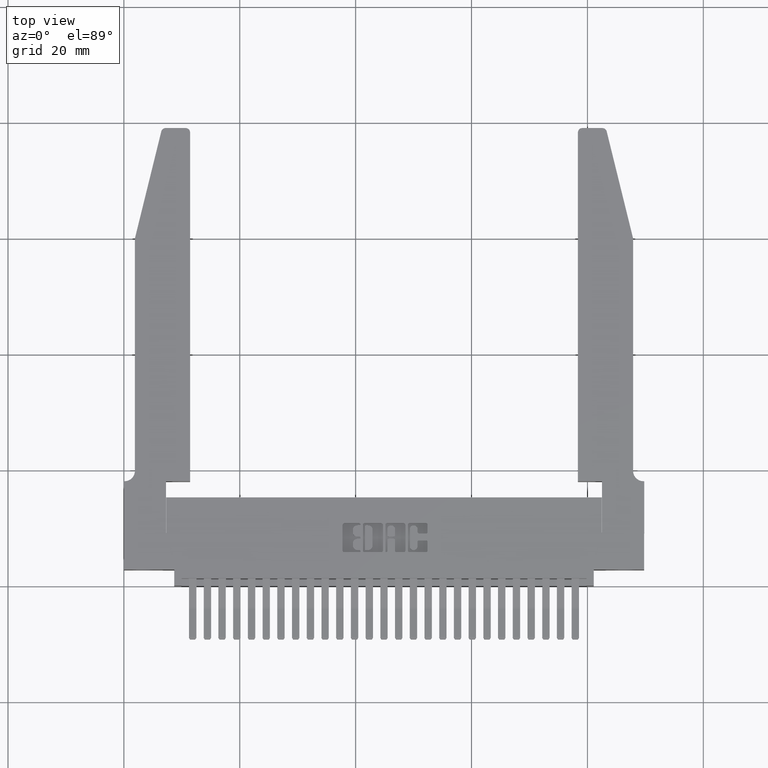
[diagram: clean part render]
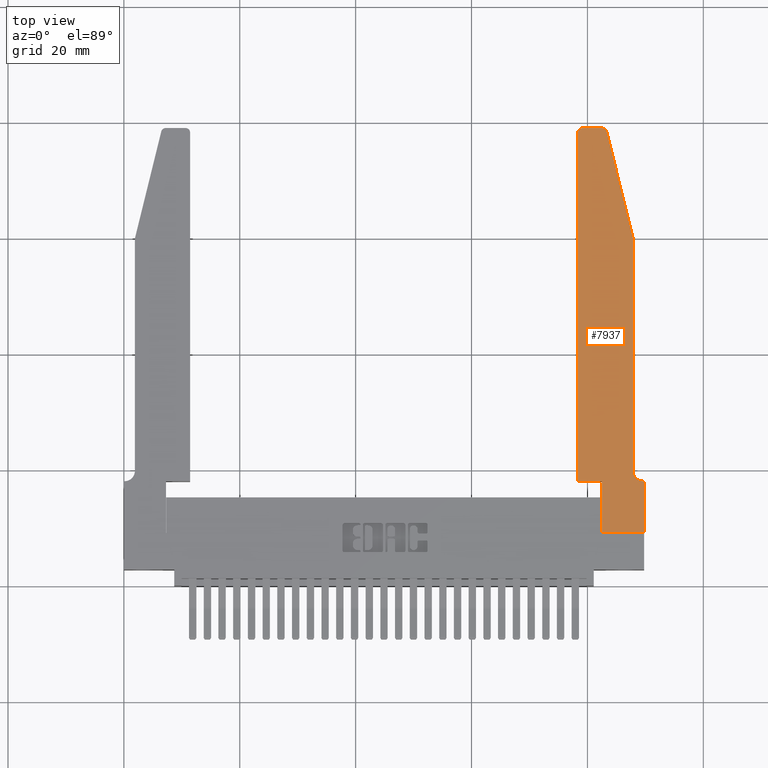
[diagram: same view with one face highlighted and labeled with its STEP entity id]
A machine part, top view. The second image highlights one B-rep face of the part: STEP entity #7937.
In plain terms, the highlighted planar face has unit normal (-0, -0, -1).
Its self-contained STEP definition (entity closure, byte-faithful):
#532 = ORIENTED_EDGE ( 'NONE', *, *, #10809, .F. ) ;
#771 = LINE ( 'NONE', #16269, #17535 ) ;
#1700 = VECTOR ( 'NONE', #20472, 39.37007874015748100 ) ;
#1913 = CARTESIAN_POINT ( 'NONE',  ( 0.07550000000000033100, 0.3499999999999999800, 0.0000000000000000000 ) ) ;
#1915 = ORIENTED_EDGE ( 'NONE', *, *, #7622, .F. ) ;
#1965 = CARTESIAN_POINT ( 'NONE',  ( 0.0000000000000000000, 0.3499999999999999800, 0.0000000000000000000 ) ) ;
#2440 = LINE ( 'NONE', #15037, #24242 ) ;
#3060 = VECTOR ( 'NONE', #13003, 39.37007874015748100 ) ;
#3085 = LINE ( 'NONE', #12514, #14041 ) ;
#3381 = CARTESIAN_POINT ( 'NONE',  ( 0.4505000000000000100, 2.719999999999999300, 0.0000000000000000000 ) ) ;
#3650 = ORIENTED_EDGE ( 'NONE', *, *, #17206, .F. ) ;
#3780 = CARTESIAN_POINT ( 'NONE',  ( 0.005500000000000255600, 0.3499999999999999800, 0.0000000000000000000 ) ) ;
#4353 = VERTEX_POINT ( 'NONE', #11596 ) ;
#4933 = CARTESIAN_POINT ( 'NONE',  ( 0.4505000000000000100, 0.3499999999999999800, 0.0000000000000000000 ) ) ;
#4961 = DIRECTION ( 'NONE',  ( -5.612000012723082900E-032, -1.000000000000000000, -5.916456789157588500E-031 ) ) ;
#4964 = CARTESIAN_POINT ( 'NONE',  ( 0.005500000000000255600, 0.4199999999999999800, 0.0000000000000000000 ) ) ;
#5191 = VERTEX_POINT ( 'NONE', #25527 ) ;
#5216 = CARTESIAN_POINT ( 'NONE',  ( 0.0000000000000000000, 0.0000000000000000000, 0.0000000000000000000 ) ) ;
#5698 = EDGE_CURVE ( 'NONE', #17451, #23952, #771, .T. ) ;
#5926 = DIRECTION ( 'NONE',  ( -1.000000000000000000, -5.612000012723089400E-032, 0.0000000000000000000 ) ) ;
#6003 = VERTEX_POINT ( 'NONE', #26130 ) ;
#6233 = CARTESIAN_POINT ( 'NONE',  ( 0.07550000000000033100, 0.4199999999999999800, 0.0000000000000000000 ) ) ;
#6927 = LINE ( 'NONE', #1913, #12062 ) ;
#7175 = DIRECTION ( 'NONE',  ( 1.000000000000000000, 5.612000012723089400E-032, 0.0000000000000000000 ) ) ;
#7190 = DIRECTION ( 'NONE',  ( -0.0000000000000000000, -5.916456789157588500E-031, -1.000000000000000000 ) ) ;
#7215 = DIRECTION ( 'NONE',  ( -1.000000000000000000, 0.0000000000000000000, 0.0000000000000000000 ) ) ;
#7440 = AXIS2_PLACEMENT_3D ( 'NONE', #20210, #7190, #22366 ) ;
#7622 = EDGE_CURVE ( 'NONE', #24142, #14836, #18804, .T. ) ;
#7653 = CARTESIAN_POINT ( 'NONE',  ( 0.4205000000000000400, 2.750000000000000000, 0.0000000000000000000 ) ) ;
#7807 = EDGE_CURVE ( 'NONE', #21819, #9888, #3085, .T. ) ;
#7837 = ORIENTED_EDGE ( 'NONE', *, *, #20632, .F. ) ;
#7937 = ADVANCED_FACE ( 'NONE', ( #27832 ), #27979, .F. ) ;
#8160 = ORIENTED_EDGE ( 'NONE', *, *, #22643, .F. ) ;
#8516 = DIRECTION ( 'NONE',  ( 1.241749088029210900E-016, -1.000000000000000000, -5.916456789157588500E-031 ) ) ;
#8657 = DIRECTION ( 'NONE',  ( -3.320315557602799600E-062, 5.916456789157588500E-031, 1.000000000000000000 ) ) ;
#8778 = LINE ( 'NONE', #4933, #25343 ) ;
#8847 = CIRCLE ( 'NONE', #7440, 0.03000000000000002300 ) ;
#8945 = LINE ( 'NONE', #21656, #3060 ) ;
#9138 = CIRCLE ( 'NONE', #15645, 0.03000000000000002300 ) ;
#9145 = AXIS2_PLACEMENT_3D ( 'NONE', #1965, #8657, #23773 ) ;
#9677 = AXIS2_PLACEMENT_3D ( 'NONE', #4964, #20241, #7215 ) ;
#9888 = VERTEX_POINT ( 'NONE', #19467 ) ;
#10809 = EDGE_CURVE ( 'NONE', #6003, #21819, #24898, .T. ) ;
#10867 = ORIENTED_EDGE ( 'NONE', *, *, #19160, .F. ) ;
#11098 = CARTESIAN_POINT ( 'NONE',  ( 0.4505000000000000100, 0.3499999999999999800, 0.0000000000000000000 ) ) ;
#11422 = VERTEX_POINT ( 'NONE', #7653 ) ;
#11596 = CARTESIAN_POINT ( 'NONE',  ( 0.0000000000000000000, 0.3499999999999999800, 0.0000000000000000000 ) ) ;
#12062 = VECTOR ( 'NONE', #23727, 39.37007874015748100 ) ;
#12514 = CARTESIAN_POINT ( 'NONE',  ( 0.2864999999999998100, 0.3499999999999999800, 0.0000000000000000000 ) ) ;
#12589 = CARTESIAN_POINT ( 'NONE',  ( 0.4205000000000000400, 2.719999999999999300, 0.0000000000000000000 ) ) ;
#12631 = EDGE_LOOP ( 'NONE', ( #8160, #25407, #3650, #15278, #21040, #10867, #22395, #532, #17998, #23730, #1915, #7837 ) ) ;
#13003 = DIRECTION ( 'NONE',  ( -0.2394884713086027600, -0.9708992080078490100, -5.916456789157588500E-031 ) ) ;
#14041 = VECTOR ( 'NONE', #23404, 39.37007874015748100 ) ;
#14783 = DIRECTION ( 'NONE',  ( 1.000000000000000000, 0.0000000000000000000, 0.0000000000000000000 ) ) ;
#14836 = VERTEX_POINT ( 'NONE', #3780 ) ;
#15037 = CARTESIAN_POINT ( 'NONE',  ( 0.07550000000000033100, 1.999999999999999300, 0.0000000000000000000 ) ) ;
#15278 = ORIENTED_EDGE ( 'NONE', *, *, #18870, .T. ) ;
#15645 = AXIS2_PLACEMENT_3D ( 'NONE', #12589, #27676, #14783 ) ;
#16269 = CARTESIAN_POINT ( 'NONE',  ( 0.4505000000000000100, 0.3499999999999999800, 0.0000000000000000000 ) ) ;
#17206 = EDGE_CURVE ( 'NONE', #11422, #5191, #25565, .T. ) ;
#17257 = LINE ( 'NONE', #26603, #22354 ) ;
#17451 = VERTEX_POINT ( 'NONE', #11098 ) ;
#17535 = VECTOR ( 'NONE', #20716, 39.37007874015748100 ) ;
#17998 = ORIENTED_EDGE ( 'NONE', *, *, #18522, .F. ) ;
#18472 = VERTEX_POINT ( 'NONE', #22196 ) ;
#18522 = EDGE_CURVE ( 'NONE', #4353, #6003, #17257, .T. ) ;
#18804 = CIRCLE ( 'NONE', #9677, 0.07000000000000000700 ) ;
#18870 = EDGE_CURVE ( 'NONE', #11422, #23952, #9138, .T. ) ;
#18974 = CARTESIAN_POINT ( 'NONE',  ( 0.2605000000000001200, 2.750000000000000000, 0.0000000000000000000 ) ) ;
#19159 = VECTOR ( 'NONE', #5926, 39.37007874015748100 ) ;
#19160 = EDGE_CURVE ( 'NONE', #9888, #17451, #8778, .T. ) ;
#19467 = CARTESIAN_POINT ( 'NONE',  ( 0.2864999999999998100, 0.3499999999999999800, 0.0000000000000000000 ) ) ;
#20210 = CARTESIAN_POINT ( 'NONE',  ( 0.2839991909279190300, 2.719999999999999300, 0.0000000000000000000 ) ) ;
#20241 = DIRECTION ( 'NONE',  ( 0.0000000000000000000, -5.916456789157588500E-031, -1.000000000000000000 ) ) ;
#20472 = DIRECTION ( 'NONE',  ( 1.000000000000000000, 8.258562440595775800E-032, 0.0000000000000000000 ) ) ;
#20632 = EDGE_CURVE ( 'NONE', #18472, #24142, #2440, .T. ) ;
#20662 = EDGE_CURVE ( 'NONE', #14836, #4353, #6927, .T. ) ;
#20716 = DIRECTION ( 'NONE',  ( 5.612000012723082900E-032, 1.000000000000000000, 5.916456789157588500E-031 ) ) ;
#21040 = ORIENTED_EDGE ( 'NONE', *, *, #5698, .F. ) ;
#21656 = CARTESIAN_POINT ( 'NONE',  ( 0.07550000000000033100, 1.999999999999999300, 0.0000000000000000000 ) ) ;
#21819 = VERTEX_POINT ( 'NONE', #23114 ) ;
#22196 = CARTESIAN_POINT ( 'NONE',  ( 0.07550000000000033100, 1.999999999999999300, 0.0000000000000000000 ) ) ;
#22354 = VECTOR ( 'NONE', #4961, 39.37007874015748100 ) ;
#22366 = DIRECTION ( 'NONE',  ( 1.000000000000000000, 0.0000000000000000000, -2.101947696487224100E-045 ) ) ;
#22395 = ORIENTED_EDGE ( 'NONE', *, *, #7807, .F. ) ;
#22643 = EDGE_CURVE ( 'NONE', #25490, #18472, #8945, .T. ) ;
#23114 = CARTESIAN_POINT ( 'NONE',  ( 0.2864999999999998100, 0.0000000000000000000, 0.0000000000000000000 ) ) ;
#23404 = DIRECTION ( 'NONE',  ( 5.612000012723082900E-032, 1.000000000000000000, 5.916456789157588500E-031 ) ) ;
#23727 = DIRECTION ( 'NONE',  ( -1.000000000000000000, -5.612000012723089400E-032, 0.0000000000000000000 ) ) ;
#23730 = ORIENTED_EDGE ( 'NONE', *, *, #20662, .F. ) ;
#23773 = DIRECTION ( 'NONE',  ( 1.000000000000000000, 5.612000012723089400E-032, 0.0000000000000000000 ) ) ;
#23952 = VERTEX_POINT ( 'NONE', #3381 ) ;
#24142 = VERTEX_POINT ( 'NONE', #6233 ) ;
#24242 = VECTOR ( 'NONE', #8516, 39.37007874015748100 ) ;
#24898 = LINE ( 'NONE', #5216, #1700 ) ;
#25343 = VECTOR ( 'NONE', #7175, 39.37007874015748100 ) ;
#25407 = ORIENTED_EDGE ( 'NONE', *, *, #26616, .T. ) ;
#25490 = VERTEX_POINT ( 'NONE', #26823 ) ;
#25527 = CARTESIAN_POINT ( 'NONE',  ( 0.2839991909279190300, 2.750000000000000000, 0.0000000000000000000 ) ) ;
#25565 = LINE ( 'NONE', #18974, #19159 ) ;
#26130 = CARTESIAN_POINT ( 'NONE',  ( 0.0000000000000000000, 0.0000000000000000000, 0.0000000000000000000 ) ) ;
#26603 = CARTESIAN_POINT ( 'NONE',  ( 0.0000000000000000000, 0.0000000000000000000, 0.0000000000000000000 ) ) ;
#26616 = EDGE_CURVE ( 'NONE', #25490, #5191, #8847, .T. ) ;
#26823 = CARTESIAN_POINT ( 'NONE',  ( 0.2548722146876835600, 2.727184654139257700, 0.0000000000000000000 ) ) ;
#27676 = DIRECTION ( 'NONE',  ( -0.0000000000000000000, -5.916456789157588500E-031, -1.000000000000000000 ) ) ;
#27832 = FACE_OUTER_BOUND ( 'NONE', #12631, .T. ) ;
#27979 = PLANE ( 'NONE',  #9145 ) ;